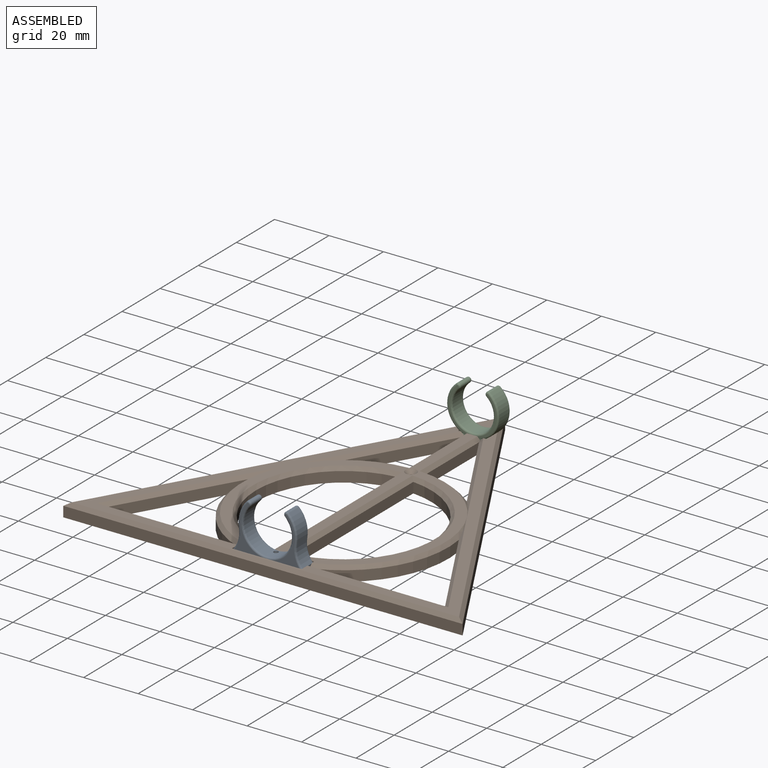
[diagram: assembled view]
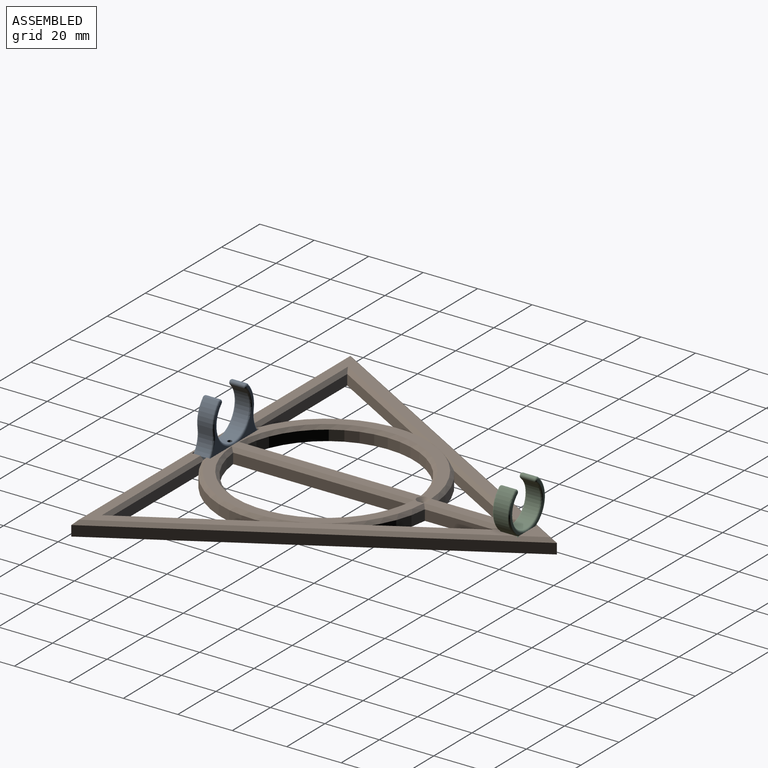
[diagram: assembled view, second angle]
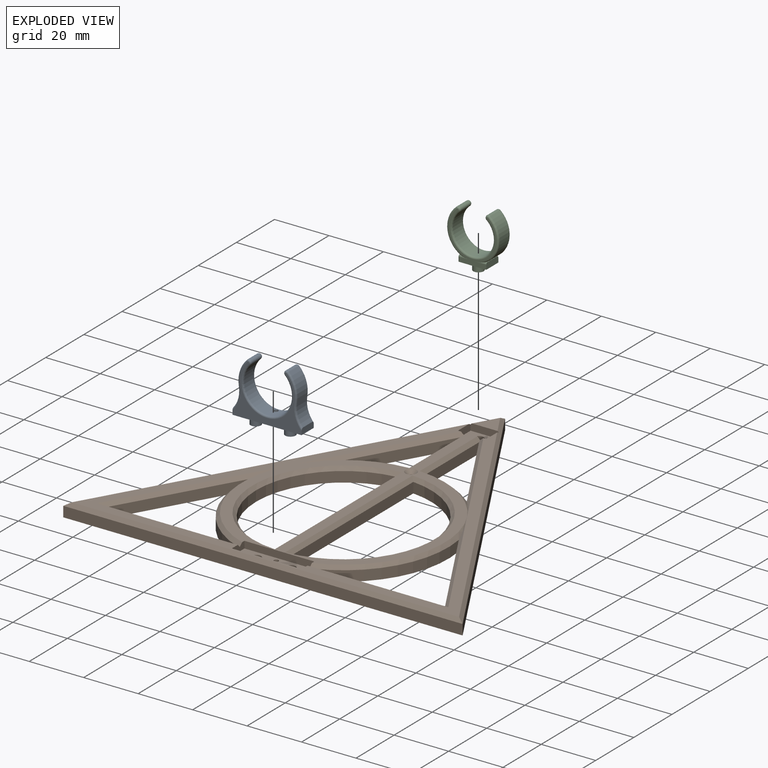
[diagram: exploded view]
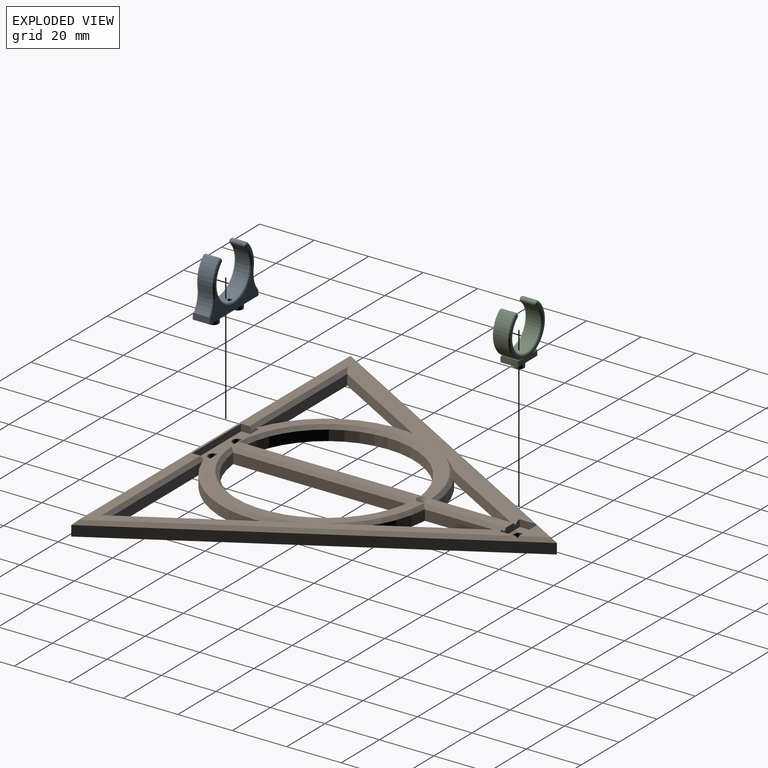
[diagram: exploded view, second angle]
ASSEMBLY  parts=3 mates=2
PART A: 31 faces, bbox 26.3x22.6x6.4 mm
  f0: plane 25.4x19.09mm, normal (0,0,-1), area 121.7mm2, adj f1,f3,f4,f24,f25,f26,f27,f28
  f1: plane 6.35x2.29mm, normal (1,0,0), area 14.3mm2, adj f0,f2,f4,f8,f23,f24
  f2: plane 25.4x19.09mm, normal (0,0,1), area 121.7mm2, adj f1,f3,f4,f17,f18,f19,f20,f21
  f3: plane 6.35x2.29mm, normal (-1,0,0), area 14.3mm2, adj f0,f2,f4,f10,f17,f30
  f4: plane 25.4x6.35mm, normal (0,1,0), area 136.3mm2, adj f0,f1,f2,f3,f12,f14,f16
  f5: cylinder r=8.89mm len=17.78mm, axis (0,0,1), area 210.7mm2, adj f6,f9,f16,f20,f27
  f6: cylinder r=0.95mm len=5.08mm, axis (0,0,1), area 15.2mm2, adj f5,f7,f21,f26
  f7: cylinder r=10.79mm len=9.46mm, axis (0,0,1), area 52.4mm2, adj f6,f8,f22,f25
  f8: cylinder r=9.53mm len=7.7mm, axis (0,0,1), area 41.8mm2, adj f1,f7,f23,f24
  f9: cylinder r=0.95mm len=5.08mm, axis (0,0,1), area 15.2mm2, adj f5,f11,f19,f28
  f10: cylinder r=9.53mm len=7.7mm, axis (0,0,1), area 41.8mm2, adj f3,f11,f17,f30
  f11: cylinder r=10.79mm len=9.46mm, axis (0,0,1), area 52.4mm2, adj f9,f10,f18,f29
  f12: cylinder r=1.91mm len=3.81mm, axis (0,-1,0), area 30.4mm2, adj f4,f13
  f13: plane 3.81x3.81mm, normal (0,1,0), area 11.4mm2, adj f12
  f14: cylinder r=1.91mm len=3.81mm, axis (0,-1,0), area 30.4mm2, adj f4,f15
  f15: plane 3.81x3.81mm, normal (0,1,0), area 11.4mm2, adj f14
  f16: cylinder r=0.83mm len=2.96mm, axis (0,1,0), area 15.3mm2, adj f4,f5
  f17: torus R=10.16mm, axis (0,0,-1), area 8.7mm2, adj f2,f3,f10,f18
  f18: torus R=10.16mm, axis (0,0,-1), area 10.1mm2, adj f2,f11,f17,f19
  f19: torus R=0.32mm, axis (0,0,-1), area 2.3mm2, adj f2,f9,f18,f20
  f20: torus R=9.53mm, axis (0,0,-1), area 42.9mm2, adj f2,f5,f19,f21
  f21: torus R=0.32mm, axis (0,0,-1), area 2.3mm2, adj f2,f6,f20,f22
  f22: torus R=10.16mm, axis (0,0,-1), area 10.1mm2, adj f2,f7,f21,f23
  f23: torus R=10.16mm, axis (0,0,-1), area 8.7mm2, adj f1,f2,f8,f22
  f24: torus R=10.16mm, axis (0,0,-1), area 8.7mm2, adj f0,f1,f8,f25
  f25: torus R=10.16mm, axis (0,0,-1), area 10.1mm2, adj f0,f7,f24,f26
  f26: torus R=0.32mm, axis (0,0,-1), area 2.3mm2, adj f0,f6,f25,f27
  f27: torus R=9.53mm, axis (0,0,-1), area 42.9mm2, adj f0,f5,f26,f28
  f28: torus R=0.32mm, axis (0,0,-1), area 2.3mm2, adj f0,f9,f27,f29
  f29: torus R=10.16mm, axis (0,0,-1), area 10.1mm2, adj f0,f11,f28,f30
  f30: torus R=10.16mm, axis (0,0,-1), area 8.7mm2, adj f0,f3,f10,f29
PART B: 58 faces, bbox 146.7x127x5.1 mm
  f0: plane 102.37x74.51mm, normal (0,0,1), area 1130mm2, adj f26,f31,f32,f33,f38,f41,f47,f48
  f1: plane 9.39x8.13mm, normal (0,0,1), area 38.1mm2, adj f28,f44,f45
  f2: plane 146.65x127mm, normal (0,0,-1), area 4418.4mm2, adj f4,f6,f7,f8,f9,f10,f11,f12
  f3: plane 25.65x6.6mm, normal (0,0,1), area 144.5mm2, adj f4,f31,f32,f33,f34,f35,f36
  f4: cylinder r=0.83mm len=2.54mm, axis (0,0,-1), area 13.2mm2, adj f2,f3
  f5: plane 142.25x114.17mm, normal (0,0,1), area 1395mm2, adj f26,f27,f29,f31,f33,f34,f39,f40
  f6: plane 64.03x3.81mm, normal (-1,0,0), area 244mm2, adj f2,f18,f49
  f7: cylinder r=32.17mm len=64.03mm, axis (0,0,-1), area 360.9mm2, adj f2,f19,f48
  f8: plane 127x73.32mm, normal (0.87,0.5,0), area 558.7mm2, adj f2,f9,f20,f45
  f9: plane 127x73.32mm, normal (-0.87,0.5,0), area 558.7mm2, adj f2,f8,f20,f44
  f10: plane 28.08x3.81mm, normal (1,0,0), area 107mm2, adj f2,f11,f21,f52
  f11: plane 36.56x21.11mm, normal (-0.87,-0.5,0), area 160.9mm2, adj f2,f10,f21,f51
  f12: plane 36.56x21.11mm, normal (0.87,-0.5,0), area 160.9mm2, adj f2,f13,f22,f55
  f13: plane 28.08x3.81mm, normal (-1,0,0), area 107mm2, adj f2,f12,f22,f54
  f14: plane 42.06x24.28mm, normal (0.87,-0.5,0), area 185mm2, adj f2,f15,f23,f40
  f15: cylinder r=38.52mm len=42.06mm, axis (0,0,-1), area 200.2mm2, adj f2,f14,f23,f38
  f16: plane 48.57x3.81mm, normal (0,1,0), area 185mm2, adj f2,f17,f24,f43
  f17: cylinder r=38.52mm len=42.06mm, axis (0,0,-1), area 200.2mm2, adj f2,f16,f24,f41
  f18: cylinder r=32.17mm len=64.03mm, axis (0,0,-1), area 360.9mm2, adj f2,f6,f50
  f19: plane 64.03x3.81mm, normal (1,0,0), area 244mm2, adj f2,f7,f47
  f20: plane 146.65x3.81mm, normal (0,-1,0), area 558.7mm2, adj f2,f8,f9,f46
  f21: cylinder r=38.52mm len=21.11mm, axis (0,0,-1), area 88mm2, adj f2,f10,f11,f53
  f22: cylinder r=38.52mm len=21.11mm, axis (0,0,-1), area 88mm2, adj f2,f12,f13,f56
  f23: plane 48.57x3.81mm, normal (0,1,0), area 185mm2, adj f2,f14,f15,f39
  f24: plane 42.06x24.28mm, normal (-0.87,-0.5,0), area 185mm2, adj f2,f16,f17,f42
  f25: cylinder r=0.83mm len=3.81mm, axis (0,0,-1), area 19.8mm2, adj f2,f57
  f26: plane 10.41x2.54mm, normal (0,1,0), area 24.2mm2, adj f0,f5,f27,f29,f30,f51,f52,f54
  f27: plane 6.6x2.54mm, normal (-1,0,0), area 16.6mm2, adj f5,f26,f28,f30,f45
  f28: plane 10.41x2.54mm, normal (0,-1,0), area 26.2mm2, adj f1,f27,f29,f30,f44,f45
  f29: plane 6.6x2.54mm, normal (1,0,0), area 16.6mm2, adj f5,f26,f28,f30,f44
  f30: plane 10.41x6.6mm, normal (0,0,1), area 57.4mm2, adj f26,f27,f28,f29,f37
  f31: plane 6.61x2.55mm, normal (-1,0,0), area 15.5mm2, adj f0,f3,f5,f32,f34,f41,f43
  f32: plane 25.65x2.54mm, normal (0,-1,0), area 65.2mm2, adj f0,f3,f31,f33
  f33: plane 6.61x2.55mm, normal (1,0,0), area 15.5mm2, adj f0,f3,f5,f32,f34,f38,f39
  f34: plane 25.65x2.54mm, normal (0,1,0), area 65.2mm2, adj f3,f5,f31,f33
  f35: cylinder r=1.91mm len=3.81mm, axis (0,0,1), area 30.4mm2, adj f2,f3
  f36: cylinder r=1.91mm len=3.81mm, axis (0,0,1), area 30.4mm2, adj f2,f3
  f37: cylinder r=1.91mm len=3.81mm, axis (0,0,1), area 30.4mm2, adj f2,f30
  f38: cone r=37.25mm half-angle=45deg, axis (0,0,-1), area 102.2mm2, adj f0,f15,f33,f39,f40
  f39: plane 51.7x1.27mm, normal (0,0.71,0.71), area 90.8mm2, adj f5,f23,f33,f38,f40
  f40: plane 55.88x32.26mm, normal (0.61,-0.35,0.71), area 97.4mm2, adj f5,f14,f38,f39
  f41: cone r=37.25mm half-angle=45deg, axis (0,0,-1), area 102.2mm2, adj f0,f17,f31,f42,f43
  f42: plane 55.88x32.26mm, normal (-0.61,-0.35,0.71), area 97.4mm2, adj f5,f24,f41,f43
  f43: plane 51.7x1.27mm, normal (0,0.71,0.71), area 90.8mm2, adj f5,f16,f31,f41,f42
  f44: plane 127x73.32mm, normal (-0.61,0.35,0.71), area 259.1mm2, adj f1,f5,f9,f28,f29,f45,f46
  f45: plane 127x73.32mm, normal (0.61,0.35,0.71), area 259.1mm2, adj f1,f5,f8,f27,f28,f44,f46
  f46: plane 146.65x1.27mm, normal (0,-0.71,0.71), area 259.4mm2, adj f5,f20,f44,f45
  f47: plane 66.8x1.29mm, normal (0.71,0,0.71), area 117.5mm2, adj f0,f19,f48
  f48: cone r=32.17mm half-angle=45deg, axis (0,0,1), area 176mm2, adj f0,f7,f47
  f49: plane 66.8x1.29mm, normal (-0.71,0,0.71), area 117.5mm2, adj f0,f6,f50
  f50: cone r=32.17mm half-angle=45deg, axis (0,0,1), area 176mm2, adj f0,f18,f49
  f51: plane 48.77x29.34mm, normal (-0.61,-0.35,0.71), area 85.1mm2, adj f5,f11,f26,f52,f53
  f52: plane 30.21x1.29mm, normal (0.71,0,0.71), area 53mm2, adj f0,f10,f26,f51,f53
  f53: cone r=37.25mm half-angle=45deg, axis (0,0,-1), area 50mm2, adj f0,f21,f51,f52
  f54: plane 30.21x1.29mm, normal (-0.71,0,0.71), area 53mm2, adj f0,f13,f26,f55,f56
  f55: plane 48.77x29.34mm, normal (0.61,-0.35,0.71), area 85.1mm2, adj f5,f12,f26,f54,f56
  f56: cone r=37.25mm half-angle=45deg, axis (0,0,-1), area 50mm2, adj f0,f22,f54,f55
  f57: cone r=0.83mm half-angle=45deg, axis (0,0,1), area 16.5mm2, adj f0,f25
PART C: 30 faces, bbox 20.6x21x6.4 mm
  f0: plane 17.78x15.77mm, normal (0,0,1), area 26.9mm2, adj f24,f25,f26,f27,f29
  f1: plane 10.16x1.65mm, normal (0,0,-1), area 16.8mm2, adj f4,f6,f8,f16,f21
  f2: plane 5.08x0.33mm, normal (0,-1,0), area 1.7mm2, adj f6,f13,f16,f23
  f3: plane 17.78x15.77mm, normal (0,0,-1), area 26.9mm2, adj f17,f18,f19,f20,f22
  f4: plane 6.35x2.29mm, normal (1,0,0), area 14.3mm2, adj f1,f5,f7,f8,f21,f28
  f5: plane 10.16x1.65mm, normal (0,0,1), area 16.8mm2, adj f4,f6,f8,f23,f28
  f6: plane 6.35x2.29mm, normal (-1,0,0), area 14.3mm2, adj f1,f2,f5,f8,f16,f23
  f7: plane 5.08x0.33mm, normal (0,-1,0), area 1.7mm2, adj f4,f11,f21,f28
  f8: plane 10.16x6.35mm, normal (0,1,0), area 53.1mm2, adj f1,f4,f5,f6,f14
  f9: cylinder r=7.62mm len=15.24mm, axis (0,0,1), area 189.2mm2, adj f10,f12,f19,f26
  f10: cylinder r=0.95mm len=5.08mm, axis (0,0,1), area 15.2mm2, adj f9,f11,f20,f27
  f11: cylinder r=9.53mm len=15.55mm, axis (0,0,1), area 93mm2, adj f7,f10,f22,f29
  f12: cylinder r=0.95mm len=5.08mm, axis (0,0,1), area 15.2mm2, adj f9,f13,f18,f25
  f13: cylinder r=9.53mm len=15.55mm, axis (0,0,1), area 93mm2, adj f2,f12,f17,f24
  f14: cylinder r=1.91mm len=3.81mm, axis (0,-1,0), area 30.4mm2, adj f8,f15
  f15: plane 3.81x3.81mm, normal (0,1,0), area 11.4mm2, adj f14
  f16: cylinder r=0.64mm len=5.08mm, axis (-1,0,0), area 1.5mm2, adj f1,f2,f6,f17
  f17: torus R=8.89mm, axis (0,0,-1), area 18.9mm2, adj f3,f13,f16,f18
  f18: torus R=0.32mm, axis (0,0,-1), area 2.3mm2, adj f3,f12,f17,f19
  f19: torus R=8.26mm, axis (0,0,-1), area 38.3mm2, adj f3,f9,f18,f20
  f20: torus R=0.32mm, axis (0,0,-1), area 2.3mm2, adj f3,f10,f19,f22
  f21: cylinder r=0.64mm len=5.08mm, axis (-1,0,0), area 1.5mm2, adj f1,f4,f7,f22
  f22: torus R=8.89mm, axis (0,0,-1), area 18.9mm2, adj f3,f11,f20,f21
  f23: cylinder r=0.64mm len=5.08mm, axis (1,0,0), area 1.5mm2, adj f2,f5,f6,f24
  f24: torus R=8.89mm, axis (0,0,-1), area 18.9mm2, adj f0,f13,f23,f25
  f25: torus R=0.32mm, axis (0,0,-1), area 2.3mm2, adj f0,f12,f24,f26
  f26: torus R=8.26mm, axis (0,0,-1), area 38.3mm2, adj f0,f9,f25,f27
  f27: torus R=0.32mm, axis (0,0,-1), area 2.3mm2, adj f0,f10,f26,f29
  f28: cylinder r=0.64mm len=5.08mm, axis (1,0,0), area 1.5mm2, adj f4,f5,f7,f29
  f29: torus R=8.89mm, axis (0,0,-1), area 18.9mm2, adj f0,f11,f27,f28
PLACE A rot(axis=(-1,0,0),90deg) t=(6.49,-49.93,6.73)mm
PLACE B t=(6.49,-12.93,4.19)mm fixed
PLACE C rot(axis=(-1,0,0),90deg) t=(6.49,57.76,6.73)mm
MATE planar A.f4 <-> B.f3  axis (0,0,-1) through (6.49,-49.96,6.73)mm
MATE planar C.f14 <-> B.f37  axis (0,0,-1) through (6.49,57.76,6.73)mm
